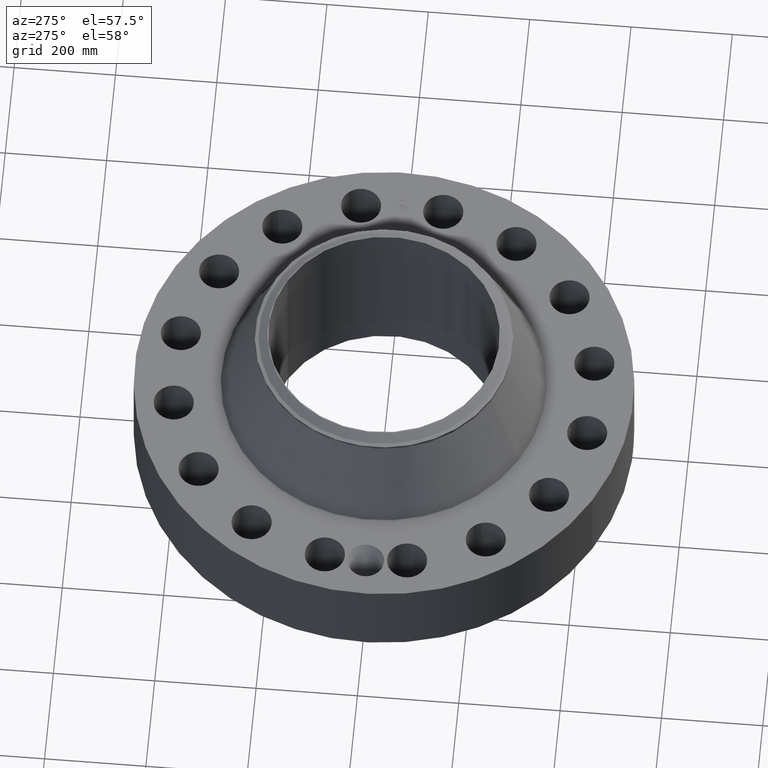
[diagram: clean part render]
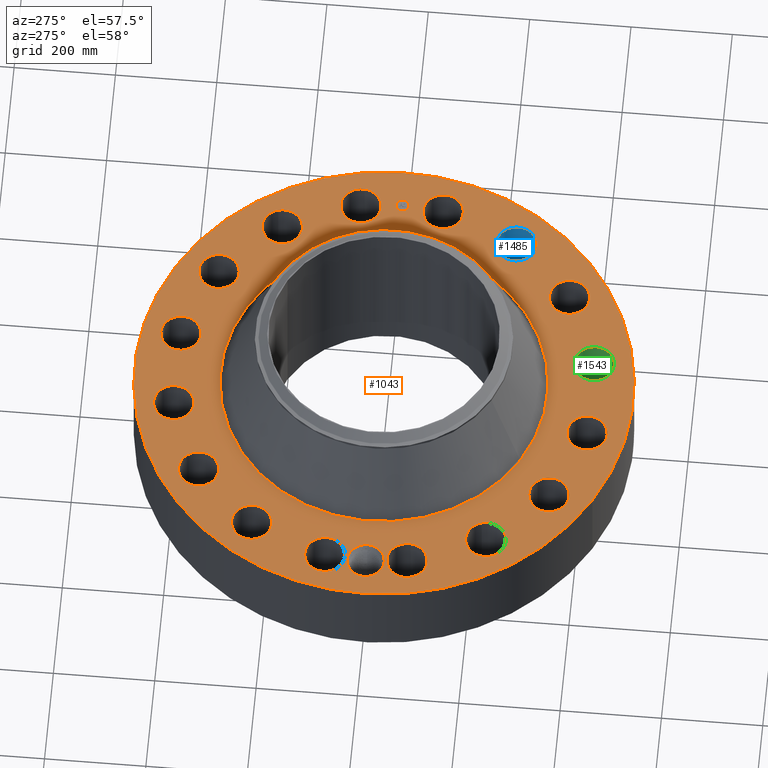
[diagram: same view with three faces highlighted in distinct colors, each labeled with its STEP entity id]
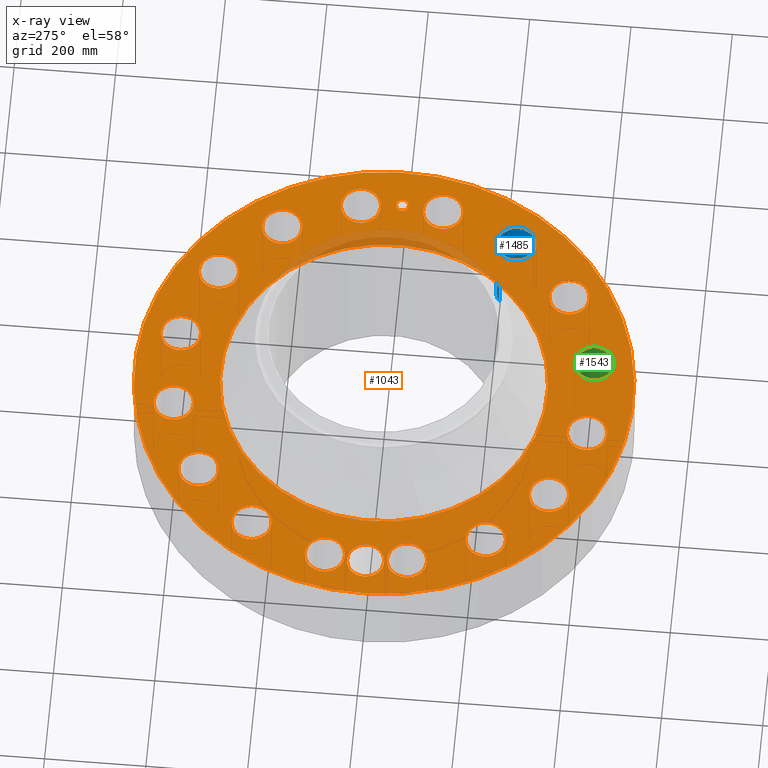
[diagram: x-ray of the same camera — body ghosted, the three highlighted faces saturated]
A machine part, auxiliary view with three faces highlighted in distinct colors.
The next image is the same camera in x-ray (body ghosted, the three faces saturated) — at least one of them is partly hidden behind the body in this view.
Their STEP definitions:

[orange] entity #1043 — the highlighted planar face has unit normal (0, 0, -1).
#58=AXIS2_PLACEMENT_3D('Circle Axis2P3D',#56,#57,$) ;
#549=AXIS2_PLACEMENT_3D('Circle Axis2P3D',#547,#548,$) ;
#649=AXIS2_PLACEMENT_3D('Plane Axis2P3D',#646,#647,#648) ;
#703=AXIS2_PLACEMENT_3D('Circle Axis2P3D',#701,#702,$) ;
#710=AXIS2_PLACEMENT_3D('Circle Axis2P3D',#708,#709,$) ;
#721=AXIS2_PLACEMENT_3D('Circle Axis2P3D',#719,#720,$) ;
#730=AXIS2_PLACEMENT_3D('Circle Axis2P3D',#728,#729,$) ;
#739=AXIS2_PLACEMENT_3D('Circle Axis2P3D',#737,#738,$) ;
#748=AXIS2_PLACEMENT_3D('Circle Axis2P3D',#746,#747,$) ;
#757=AXIS2_PLACEMENT_3D('Circle Axis2P3D',#755,#756,$) ;
#766=AXIS2_PLACEMENT_3D('Circle Axis2P3D',#764,#765,$) ;
#775=AXIS2_PLACEMENT_3D('Circle Axis2P3D',#773,#774,$) ;
#784=AXIS2_PLACEMENT_3D('Circle Axis2P3D',#782,#783,$) ;
#793=AXIS2_PLACEMENT_3D('Circle Axis2P3D',#791,#792,$) ;
#802=AXIS2_PLACEMENT_3D('Circle Axis2P3D',#800,#801,$) ;
#811=AXIS2_PLACEMENT_3D('Circle Axis2P3D',#809,#810,$) ;
#820=AXIS2_PLACEMENT_3D('Circle Axis2P3D',#818,#819,$) ;
#829=AXIS2_PLACEMENT_3D('Circle Axis2P3D',#827,#828,$) ;
#838=AXIS2_PLACEMENT_3D('Circle Axis2P3D',#836,#837,$) ;
#847=AXIS2_PLACEMENT_3D('Circle Axis2P3D',#845,#846,$) ;
#856=AXIS2_PLACEMENT_3D('Circle Axis2P3D',#854,#855,$) ;
#865=AXIS2_PLACEMENT_3D('Circle Axis2P3D',#863,#864,$) ;
#874=AXIS2_PLACEMENT_3D('Circle Axis2P3D',#872,#873,$) ;
#883=AXIS2_PLACEMENT_3D('Circle Axis2P3D',#881,#882,$) ;
#892=AXIS2_PLACEMENT_3D('Circle Axis2P3D',#890,#891,$) ;
#901=AXIS2_PLACEMENT_3D('Circle Axis2P3D',#899,#900,$) ;
#910=AXIS2_PLACEMENT_3D('Circle Axis2P3D',#908,#909,$) ;
#919=AXIS2_PLACEMENT_3D('Circle Axis2P3D',#917,#918,$) ;
#928=AXIS2_PLACEMENT_3D('Circle Axis2P3D',#926,#927,$) ;
#937=AXIS2_PLACEMENT_3D('Circle Axis2P3D',#935,#936,$) ;
#946=AXIS2_PLACEMENT_3D('Circle Axis2P3D',#944,#945,$) ;
#955=AXIS2_PLACEMENT_3D('Circle Axis2P3D',#953,#954,$) ;
#964=AXIS2_PLACEMENT_3D('Circle Axis2P3D',#962,#963,$) ;
#973=AXIS2_PLACEMENT_3D('Circle Axis2P3D',#971,#972,$) ;
#982=AXIS2_PLACEMENT_3D('Circle Axis2P3D',#980,#981,$) ;
#991=AXIS2_PLACEMENT_3D('Circle Axis2P3D',#989,#990,$) ;
#1000=AXIS2_PLACEMENT_3D('Circle Axis2P3D',#998,#999,$) ;
#1009=AXIS2_PLACEMENT_3D('Circle Axis2P3D',#1007,#1008,$) ;
#1018=AXIS2_PLACEMENT_3D('Circle Axis2P3D',#1016,#1017,$) ;
#1027=AXIS2_PLACEMENT_3D('Circle Axis2P3D',#1025,#1026,$) ;
#1036=AXIS2_PLACEMENT_3D('Circle Axis2P3D',#1034,#1035,$) ;
#53=CARTESIAN_POINT('Vertex',(-9.28886981049,-17.0031621367,7.25000000003)) ;
#56=CARTESIAN_POINT('Axis2P3D Location',(0.,0.,7.25000000003)) ;
#60=CARTESIAN_POINT('Vertex',(9.28886981049,17.0031621367,7.25000000003)) ;
#547=CARTESIAN_POINT('Axis2P3D Location',(0.,0.,7.25000000003)) ;
#646=CARTESIAN_POINT('Axis2P3D Location',(0.,19.3750000001,7.25000000003)) ;
#656=CARTESIAN_POINT('Control Point',(-14.8750000001,0.,7.25000000003)) ;
#657=CARTESIAN_POINT('Control Point',(-14.8779726212,0.111125723991,7.25000000003)) ;
#658=CARTESIAN_POINT('Control Point',(-14.8912398187,0.221844378926,7.25000000003)) ;
#659=CARTESIAN_POINT('Control Point',(-14.9147509767,0.330866696649,7.25000000003)) ;
#660=CARTESIAN_POINT('Control Point',(-14.9864612231,0.558170960446,7.25000000003)) ;
#661=CARTESIAN_POINT('Control Point',(-15.1015006576,0.766496387145,7.25000000003)) ;
#662=CARTESIAN_POINT('Control Point',(-15.1744292327,0.870481389781,7.25000000003)) ;
#663=CARTESIAN_POINT('Control Point',(-15.3410983564,1.06097527259,7.25000000003)) ;
#664=CARTESIAN_POINT('Control Point',(-15.5437589067,1.21146597411,7.25000000003)) ;
#665=CARTESIAN_POINT('Control Point',(-15.6526616259,1.27542554342,7.25000000003)) ;
#666=CARTESIAN_POINT('Control Point',(-15.8248038443,1.35294887583,7.25000000003)) ;
#667=CARTESIAN_POINT('Control Point',(-16.0060079309,1.40156660786,7.25000000003)) ;
#668=CARTESIAN_POINT('Control Point',(-16.0671679704,1.41448543478,7.25000000003)) ;
#669=CARTESIAN_POINT('Control Point',(-16.1795022162,1.43194044004,7.25000000003)) ;
#670=CARTESIAN_POINT('Control Point',(-16.2927879725,1.43828099376,7.25000000003)) ;
#671=CARTESIAN_POINT('Control Point',(-16.3439170638,1.43886929752,7.25000000003)) ;
#672=CARTESIAN_POINT('Control Point',(-16.3949672153,1.43718861859,7.25000000003)) ;
#673=CARTESIAN_POINT('Control Point',(-16.4458040446,1.43325217157,7.25000000003)) ;
#674=CARTESIAN_POINT('Vertex',(-14.8750000001,0.,7.25000000003)) ;
#676=CARTESIAN_POINT('Vertex',(-16.4458040446,1.43325217157,7.25000000003)) ;
#680=CARTESIAN_POINT('Control Point',(-14.8750000001,0.,7.25000000003)) ;
#681=CARTESIAN_POINT('Control Point',(-14.8779729815,-0.111139197835,7.25000000003)) ;
#682=CARTESIAN_POINT('Control Point',(-14.891243039,-0.221871230267,7.25000000003)) ;
#683=CARTESIAN_POINT('Control Point',(-14.9147542841,-0.330894087727,7.25000000003)) ;
#684=CARTESIAN_POINT('Control Point',(-14.9864707189,-0.558222231262,7.25000000003)) ;
#685=CARTESIAN_POINT('Control Point',(-15.101492003,-0.766503046968,7.25000000003)) ;
#686=CARTESIAN_POINT('Control Point',(-15.1744135612,-0.870464829239,7.25000000003)) ;
#687=CARTESIAN_POINT('Control Point',(-15.3410825683,-1.06095245212,7.25000000003)) ;
#688=CARTESIAN_POINT('Control Point',(-15.5436862146,-1.21141651233,7.25000000003)) ;
#689=CARTESIAN_POINT('Control Point',(-15.6525816697,-1.27538471932,7.25000000003)) ;
#690=CARTESIAN_POINT('Control Point',(-15.8676746072,-1.37228477525,7.25000000003)) ;
#691=CARTESIAN_POINT('Control Point',(-16.0969689885,-1.42404552574,7.25000000003)) ;
#692=CARTESIAN_POINT('Control Point',(-16.2057866215,-1.43797374633,7.25000000003)) ;
#693=CARTESIAN_POINT('Control Point',(-16.319571975,-1.44166566766,7.25000000003)) ;
#694=CARTESIAN_POINT('Control Point',(-16.4325378009,-1.43422473003,7.25000000003)) ;
#695=CARTESIAN_POINT('Control Point',(-16.4369169982,-1.433919456,7.25000000003)) ;
#696=CARTESIAN_POINT('Control Point',(-16.4412947895,-1.43359745469,7.25000000003)) ;
#697=CARTESIAN_POINT('Control Point',(-16.445671088,-1.43325873357,7.25000000003)) ;
#698=CARTESIAN_POINT('Vertex',(-16.445671088,-1.43325873357,7.25000000003)) ;
#701=CARTESIAN_POINT('Axis2P3D Location',(-16.3750000001,0.,7.25000000003)) ;
#705=CARTESIAN_POINT('Vertex',(-17.6343309764,0.6879756479,7.25000000003)) ;
#708=CARTESIAN_POINT('Axis2P3D Location',(-16.3750000001,0.,7.25000000003)) ;
#719=CARTESIAN_POINT('Axis2P3D Location',(16.0603589667,-3.19460402303,7.25000000003)) ;
#723=CARTESIAN_POINT('Vertex',(14.6913301701,-2.4467001828,7.25000000003)) ;
#725=CARTESIAN_POINT('Vertex',(17.4293877632,-3.94250786325,7.25000000003)) ;
#728=CARTESIAN_POINT('Axis2P3D Location',(16.0603589667,-3.19460402303,7.25000000003)) ;
#737=CARTESIAN_POINT('Axis2P3D Location',(0.,0.,7.25000000003)) ;
#741=CARTESIAN_POINT('Vertex',(-6.09086532425,-11.1492541906,7.25000000003)) ;
#743=CARTESIAN_POINT('Vertex',(6.09086532425,11.1492541906,7.25000000003)) ;
#746=CARTESIAN_POINT('Axis2P3D Location',(0.,0.,7.25000000003)) ;
#755=CARTESIAN_POINT('Axis2P3D Location',(13.6153149015,-9.09746256573,7.25000000003)) ;
#759=CARTESIAN_POINT('Vertex',(14.5939221774,-10.3123402549,7.25000000003)) ;
#761=CARTESIAN_POINT('Vertex',(12.6367076256,-7.88258487659,7.25000000003)) ;
#764=CARTESIAN_POINT('Axis2P3D Location',(13.6153149015,-9.09746256573,7.25000000003)) ;
#773=CARTESIAN_POINT('Axis2P3D Location',(9.09746256573,-13.6153149015,7.25000000003)) ;
#777=CARTESIAN_POINT('Vertex',(9.53666423432,-15.1122123243,7.25000000003)) ;
#779=CARTESIAN_POINT('Vertex',(8.65826089715,-12.1184174787,7.25000000003)) ;
#782=CARTESIAN_POINT('Axis2P3D Location',(9.09746256573,-13.6153149015,7.25000000003)) ;
#791=CARTESIAN_POINT('Axis2P3D Location',(3.19460402303,-16.0603589667,7.25000000003)) ;
#795=CARTESIAN_POINT('Vertex',(3.02753561163,-17.6113870599,7.25000000003)) ;
#797=CARTESIAN_POINT('Vertex',(3.36167243443,-14.5093308735,7.25000000003)) ;
#800=CARTESIAN_POINT('Axis2P3D Location',(3.19460402303,-16.0603589667,7.25000000003)) ;
#809=CARTESIAN_POINT('Axis2P3D Location',(-3.19460402303,-16.0603589667,7.25000000003)) ;
#813=CARTESIAN_POINT('Vertex',(-3.94250786325,-17.4293877632,7.25000000003)) ;
#815=CARTESIAN_POINT('Vertex',(-2.4467001828,-14.6913301701,7.25000000003)) ;
#818=CARTESIAN_POINT('Axis2P3D Location',(-3.19460402303,-16.0603589667,7.25000000003)) ;
#827=CARTESIAN_POINT('Axis2P3D Location',(-9.09746256573,-13.6153149015,7.25000000003)) ;
#831=CARTESIAN_POINT('Vertex',(-10.3123402549,-14.5939221774,7.25000000003)) ;
#833=CARTESIAN_POINT('Vertex',(-7.88258487659,-12.6367076256,7.25000000003)) ;
#836=CARTESIAN_POINT('Axis2P3D Location',(-9.09746256573,-13.6153149015,7.25000000003)) ;
#845=CARTESIAN_POINT('Axis2P3D Location',(-13.6153149015,-9.09746256573,7.25000000003)) ;
#849=CARTESIAN_POINT('Vertex',(-15.1122123243,-9.53666423432,7.25000000003)) ;
#851=CARTESIAN_POINT('Vertex',(-12.1184174787,-8.65826089715,7.25000000003)) ;
#854=CARTESIAN_POINT('Axis2P3D Location',(-13.6153149015,-9.09746256573,7.25000000003)) ;
#863=CARTESIAN_POINT('Axis2P3D Location',(-16.0603589667,-3.19460402303,7.25000000003)) ;
#867=CARTESIAN_POINT('Vertex',(-17.6113870599,-3.02753561163,7.25000000003)) ;
#869=CARTESIAN_POINT('Vertex',(-14.5093308735,-3.36167243443,7.25000000003)) ;
#872=CARTESIAN_POINT('Axis2P3D Location',(-16.0603589667,-3.19460402303,7.25000000003)) ;
#881=CARTESIAN_POINT('Axis2P3D Location',(-16.0603589667,3.19460402303,7.25000000003)) ;
#885=CARTESIAN_POINT('Vertex',(-17.4293877632,3.94250786325,7.25000000003)) ;
#887=CARTESIAN_POINT('Vertex',(-14.6913301701,2.4467001828,7.25000000003)) ;
#890=CARTESIAN_POINT('Axis2P3D Location',(-16.0603589667,3.19460402303,7.25000000003)) ;
#899=CARTESIAN_POINT('Axis2P3D Location',(-13.6153149015,9.09746256573,7.25000000003)) ;
#903=CARTESIAN_POINT('Vertex',(-14.5939221774,10.3123402549,7.25000000003)) ;
#905=CARTESIAN_POINT('Vertex',(-12.6367076256,7.88258487659,7.25000000003)) ;
#908=CARTESIAN_POINT('Axis2P3D Location',(-13.6153149015,9.09746256573,7.25000000003)) ;
#917=CARTESIAN_POINT('Axis2P3D Location',(-9.09746256573,13.6153149015,7.25000000003)) ;
#921=CARTESIAN_POINT('Vertex',(-9.53666423432,15.1122123243,7.25000000003)) ;
#923=CARTESIAN_POINT('Vertex',(-8.65826089715,12.1184174787,7.25000000003)) ;
#926=CARTESIAN_POINT('Axis2P3D Location',(-9.09746256573,13.6153149015,7.25000000003)) ;
#935=CARTESIAN_POINT('Axis2P3D Location',(-3.19460402303,16.0603589667,7.25000000003)) ;
#939=CARTESIAN_POINT('Vertex',(-3.02753561163,17.6113870599,7.25000000003)) ;
#941=CARTESIAN_POINT('Vertex',(-3.36167243443,14.5093308735,7.25000000003)) ;
#944=CARTESIAN_POINT('Axis2P3D Location',(-3.19460402303,16.0603589667,7.25000000003)) ;
#953=CARTESIAN_POINT('Axis2P3D Location',(3.19460402303,16.0603589667,7.25000000003)) ;
#957=CARTESIAN_POINT('Vertex',(3.94250786325,17.4293877632,7.25000000003)) ;
#959=CARTESIAN_POINT('Vertex',(2.4467001828,14.6913301701,7.25000000003)) ;
#962=CARTESIAN_POINT('Axis2P3D Location',(3.19460402303,16.0603589667,7.25000000003)) ;
#971=CARTESIAN_POINT('Axis2P3D Location',(9.09746256573,13.6153149015,7.25000000003)) ;
#975=CARTESIAN_POINT('Vertex',(10.3123402549,14.5939221774,7.25000000003)) ;
#977=CARTESIAN_POINT('Vertex',(7.88258487659,12.6367076256,7.25000000003)) ;
#980=CARTESIAN_POINT('Axis2P3D Location',(9.09746256573,13.6153149015,7.25000000003)) ;
#989=CARTESIAN_POINT('Axis2P3D Location',(13.6153149015,9.09746256573,7.25000000003)) ;
#993=CARTESIAN_POINT('Vertex',(15.1122123243,9.53666423432,7.25000000003)) ;
#995=CARTESIAN_POINT('Vertex',(12.1184174787,8.65826089715,7.25000000003)) ;
#998=CARTESIAN_POINT('Axis2P3D Location',(13.6153149015,9.09746256573,7.25000000003)) ;
#1007=CARTESIAN_POINT('Axis2P3D Location',(16.0603589667,3.19460402303,7.25000000003)) ;
#1011=CARTESIAN_POINT('Vertex',(17.6113870599,3.02753561163,7.25000000003)) ;
#1013=CARTESIAN_POINT('Vertex',(14.5093308735,3.36167243443,7.25000000003)) ;
#1016=CARTESIAN_POINT('Axis2P3D Location',(16.0603589667,3.19460402303,7.25000000003)) ;
#1025=CARTESIAN_POINT('Axis2P3D Location',(16.3750000001,0.,7.25000000003)) ;
#1029=CARTESIAN_POINT('Vertex',(16.3750000001,0.499999995002,7.25000000003)) ;
#1031=CARTESIAN_POINT('Vertex',(16.3750000001,-0.499999995002,7.25000000003)) ;
#1034=CARTESIAN_POINT('Axis2P3D Location',(16.3750000001,0.,7.25000000003)) ;
#57=DIRECTION('Axis2P3D Direction',(0.,0.,-0.0393700787402)) ;
#548=DIRECTION('Axis2P3D Direction',(0.,0.,-0.0393700787402)) ;
#647=DIRECTION('Axis2P3D Direction',(0.,0.,-0.0393700787402)) ;
#648=DIRECTION('Axis2P3D XDirection',(0.0393700787402,0.,0.)) ;
#702=DIRECTION('Axis2P3D Direction',(0.,0.,-0.0393700787402)) ;
#709=DIRECTION('Axis2P3D Direction',(0.,0.,-0.0393700787402)) ;
#720=DIRECTION('Axis2P3D Direction',(0.,0.,-0.0393700787402)) ;
#729=DIRECTION('Axis2P3D Direction',(0.,0.,-0.0393700787402)) ;
#738=DIRECTION('Axis2P3D Direction',(0.,0.,-0.0393700787402)) ;
#747=DIRECTION('Axis2P3D Direction',(0.,0.,-0.0393700787402)) ;
#756=DIRECTION('Axis2P3D Direction',(0.,0.,-0.0393700787402)) ;
#765=DIRECTION('Axis2P3D Direction',(0.,0.,-0.0393700787402)) ;
#774=DIRECTION('Axis2P3D Direction',(0.,0.,-0.0393700787402)) ;
#783=DIRECTION('Axis2P3D Direction',(0.,0.,-0.0393700787402)) ;
#792=DIRECTION('Axis2P3D Direction',(0.,0.,-0.0393700787402)) ;
#801=DIRECTION('Axis2P3D Direction',(0.,0.,-0.0393700787402)) ;
#810=DIRECTION('Axis2P3D Direction',(0.,0.,-0.0393700787402)) ;
#819=DIRECTION('Axis2P3D Direction',(0.,0.,-0.0393700787402)) ;
#828=DIRECTION('Axis2P3D Direction',(0.,0.,-0.0393700787402)) ;
#837=DIRECTION('Axis2P3D Direction',(0.,0.,-0.0393700787402)) ;
#846=DIRECTION('Axis2P3D Direction',(0.,0.,-0.0393700787402)) ;
#855=DIRECTION('Axis2P3D Direction',(0.,0.,-0.0393700787402)) ;
#864=DIRECTION('Axis2P3D Direction',(0.,0.,-0.0393700787402)) ;
#873=DIRECTION('Axis2P3D Direction',(0.,0.,-0.0393700787402)) ;
#882=DIRECTION('Axis2P3D Direction',(0.,0.,-0.0393700787402)) ;
#891=DIRECTION('Axis2P3D Direction',(0.,0.,-0.0393700787402)) ;
#900=DIRECTION('Axis2P3D Direction',(0.,0.,-0.0393700787402)) ;
#909=DIRECTION('Axis2P3D Direction',(0.,0.,-0.0393700787402)) ;
#918=DIRECTION('Axis2P3D Direction',(0.,0.,-0.0393700787402)) ;
#927=DIRECTION('Axis2P3D Direction',(0.,0.,-0.0393700787402)) ;
#936=DIRECTION('Axis2P3D Direction',(0.,0.,-0.0393700787402)) ;
#945=DIRECTION('Axis2P3D Direction',(0.,0.,-0.0393700787402)) ;
#954=DIRECTION('Axis2P3D Direction',(0.,0.,-0.0393700787402)) ;
#963=DIRECTION('Axis2P3D Direction',(0.,0.,-0.0393700787402)) ;
#972=DIRECTION('Axis2P3D Direction',(0.,0.,-0.0393700787402)) ;
#981=DIRECTION('Axis2P3D Direction',(0.,0.,-0.0393700787402)) ;
#990=DIRECTION('Axis2P3D Direction',(0.,0.,-0.0393700787402)) ;
#999=DIRECTION('Axis2P3D Direction',(0.,0.,-0.0393700787402)) ;
#1008=DIRECTION('Axis2P3D Direction',(0.,0.,-0.0393700787402)) ;
#1017=DIRECTION('Axis2P3D Direction',(0.,0.,-0.0393700787402)) ;
#1026=DIRECTION('Axis2P3D Direction',(0.,0.,-0.0393700787402)) ;
#1035=DIRECTION('Axis2P3D Direction',(0.,0.,-0.0393700787402)) ;
#652=ORIENTED_EDGE('',*,*,#551,.F.) ;
#653=ORIENTED_EDGE('',*,*,#62,.F.) ;
#714=ORIENTED_EDGE('',*,*,#678,.F.) ;
#715=ORIENTED_EDGE('',*,*,#700,.T.) ;
#716=ORIENTED_EDGE('',*,*,#707,.T.) ;
#717=ORIENTED_EDGE('',*,*,#712,.T.) ;
#734=ORIENTED_EDGE('',*,*,#727,.T.) ;
#735=ORIENTED_EDGE('',*,*,#732,.T.) ;
#752=ORIENTED_EDGE('',*,*,#745,.T.) ;
#753=ORIENTED_EDGE('',*,*,#750,.T.) ;
#770=ORIENTED_EDGE('',*,*,#763,.T.) ;
#771=ORIENTED_EDGE('',*,*,#768,.T.) ;
#788=ORIENTED_EDGE('',*,*,#781,.T.) ;
#789=ORIENTED_EDGE('',*,*,#786,.T.) ;
#806=ORIENTED_EDGE('',*,*,#799,.T.) ;
#807=ORIENTED_EDGE('',*,*,#804,.T.) ;
#824=ORIENTED_EDGE('',*,*,#817,.T.) ;
#825=ORIENTED_EDGE('',*,*,#822,.T.) ;
#842=ORIENTED_EDGE('',*,*,#835,.T.) ;
#843=ORIENTED_EDGE('',*,*,#840,.T.) ;
#860=ORIENTED_EDGE('',*,*,#853,.T.) ;
#861=ORIENTED_EDGE('',*,*,#858,.T.) ;
#878=ORIENTED_EDGE('',*,*,#871,.T.) ;
#879=ORIENTED_EDGE('',*,*,#876,.T.) ;
#896=ORIENTED_EDGE('',*,*,#889,.T.) ;
#897=ORIENTED_EDGE('',*,*,#894,.T.) ;
#914=ORIENTED_EDGE('',*,*,#907,.T.) ;
#915=ORIENTED_EDGE('',*,*,#912,.T.) ;
#932=ORIENTED_EDGE('',*,*,#925,.T.) ;
#933=ORIENTED_EDGE('',*,*,#930,.T.) ;
#950=ORIENTED_EDGE('',*,*,#943,.T.) ;
#951=ORIENTED_EDGE('',*,*,#948,.T.) ;
#968=ORIENTED_EDGE('',*,*,#961,.T.) ;
#969=ORIENTED_EDGE('',*,*,#966,.T.) ;
#986=ORIENTED_EDGE('',*,*,#979,.T.) ;
#987=ORIENTED_EDGE('',*,*,#984,.T.) ;
#1004=ORIENTED_EDGE('',*,*,#997,.T.) ;
#1005=ORIENTED_EDGE('',*,*,#1002,.T.) ;
#1022=ORIENTED_EDGE('',*,*,#1015,.T.) ;
#1023=ORIENTED_EDGE('',*,*,#1020,.T.) ;
#1040=ORIENTED_EDGE('',*,*,#1033,.T.) ;
#1041=ORIENTED_EDGE('',*,*,#1038,.T.) ;
#718=FACE_BOUND('',#713,.T.) ;
#736=FACE_BOUND('',#733,.T.) ;
#754=FACE_BOUND('',#751,.T.) ;
#772=FACE_BOUND('',#769,.T.) ;
#790=FACE_BOUND('',#787,.T.) ;
#808=FACE_BOUND('',#805,.T.) ;
#826=FACE_BOUND('',#823,.T.) ;
#844=FACE_BOUND('',#841,.T.) ;
#862=FACE_BOUND('',#859,.T.) ;
#880=FACE_BOUND('',#877,.T.) ;
#898=FACE_BOUND('',#895,.T.) ;
#916=FACE_BOUND('',#913,.T.) ;
#934=FACE_BOUND('',#931,.T.) ;
#952=FACE_BOUND('',#949,.T.) ;
#970=FACE_BOUND('',#967,.T.) ;
#988=FACE_BOUND('',#985,.T.) ;
#1006=FACE_BOUND('',#1003,.T.) ;
#1024=FACE_BOUND('',#1021,.T.) ;
#1042=FACE_BOUND('',#1039,.T.) ;
#1043=ADVANCED_FACE('PartBody',(#654,#718,#736,#754,#772,#790,#808,#826,#844,#862,#880,#898,#916,#934,#952,#970,#988,#1006,#1024,#1042),#650,.F.) ;
#655=B_SPLINE_CURVE_WITH_KNOTS('',5,(#656,#657,#658,#659,#660,#661,#662,#663,#664,#665,#666,#667,#668,#669,#670,#671,#672,#673),.UNSPECIFIED.,.F.,.U.,(6,3,3,3,3,6),(0.,19.5605297382,41.9229814709,64.2804915093,75.45383994,84.6261161027),.UNSPECIFIED.) ;
#679=B_SPLINE_CURVE_WITH_KNOTS('',5,(#680,#681,#682,#683,#684,#685,#686,#687,#688,#689,#690,#691,#692,#693,#694,#695,#696,#697),.UNSPECIFIED.,.F.,.U.,(6,3,3,3,3,6),(0.,19.5629014257,41.9377840224,64.3216328483,83.8892695149,84.67866134),.UNSPECIFIED.) ;
#59=CIRCLE('generated circle',#58,19.3750000001) ;
#550=CIRCLE('generated circle',#549,19.3750000001) ;
#704=CIRCLE('generated circle',#703,1.43500000001) ;
#711=CIRCLE('generated circle',#710,1.43500000001) ;
#722=CIRCLE('generated circle',#721,1.56000000001) ;
#731=CIRCLE('generated circle',#730,1.56000000001) ;
#740=CIRCLE('generated circle',#739,12.7045074444) ;
#749=CIRCLE('generated circle',#748,12.7045074444) ;
#758=CIRCLE('generated circle',#757,1.56000000001) ;
#767=CIRCLE('generated circle',#766,1.56000000001) ;
#776=CIRCLE('generated circle',#775,1.56000000001) ;
#785=CIRCLE('generated circle',#784,1.56000000001) ;
#794=CIRCLE('generated circle',#793,1.56000000001) ;
#803=CIRCLE('generated circle',#802,1.56000000001) ;
#812=CIRCLE('generated circle',#811,1.56000000001) ;
#821=CIRCLE('generated circle',#820,1.56000000001) ;
#830=CIRCLE('generated circle',#829,1.56000000001) ;
#839=CIRCLE('generated circle',#838,1.56000000001) ;
#848=CIRCLE('generated circle',#847,1.56000000001) ;
#857=CIRCLE('generated circle',#856,1.56000000001) ;
#866=CIRCLE('generated circle',#865,1.56000000001) ;
#875=CIRCLE('generated circle',#874,1.56000000001) ;
#884=CIRCLE('generated circle',#883,1.56000000001) ;
#893=CIRCLE('generated circle',#892,1.56000000001) ;
#902=CIRCLE('generated circle',#901,1.56000000001) ;
#911=CIRCLE('generated circle',#910,1.56000000001) ;
#920=CIRCLE('generated circle',#919,1.56000000001) ;
#929=CIRCLE('generated circle',#928,1.56000000001) ;
#938=CIRCLE('generated circle',#937,1.56000000001) ;
#947=CIRCLE('generated circle',#946,1.56000000001) ;
#956=CIRCLE('generated circle',#955,1.56000000001) ;
#965=CIRCLE('generated circle',#964,1.56000000001) ;
#974=CIRCLE('generated circle',#973,1.56000000001) ;
#983=CIRCLE('generated circle',#982,1.56000000001) ;
#992=CIRCLE('generated circle',#991,1.56000000001) ;
#1001=CIRCLE('generated circle',#1000,1.56000000001) ;
#1010=CIRCLE('generated circle',#1009,1.56000000001) ;
#1019=CIRCLE('generated circle',#1018,1.56000000001) ;
#1028=CIRCLE('generated circle',#1027,0.499999995002) ;
#1037=CIRCLE('generated circle',#1036,0.499999995002) ;
#62=EDGE_CURVE('',#54,#61,#59,.T.) ;
#551=EDGE_CURVE('',#61,#54,#550,.T.) ;
#678=EDGE_CURVE('',#675,#677,#655,.T.) ;
#700=EDGE_CURVE('',#675,#699,#679,.T.) ;
#707=EDGE_CURVE('',#699,#706,#704,.T.) ;
#712=EDGE_CURVE('',#706,#677,#711,.T.) ;
#727=EDGE_CURVE('',#724,#726,#722,.T.) ;
#732=EDGE_CURVE('',#726,#724,#731,.T.) ;
#745=EDGE_CURVE('',#742,#744,#740,.T.) ;
#750=EDGE_CURVE('',#744,#742,#749,.T.) ;
#763=EDGE_CURVE('',#760,#762,#758,.T.) ;
#768=EDGE_CURVE('',#762,#760,#767,.T.) ;
#781=EDGE_CURVE('',#778,#780,#776,.T.) ;
#786=EDGE_CURVE('',#780,#778,#785,.T.) ;
#799=EDGE_CURVE('',#796,#798,#794,.T.) ;
#804=EDGE_CURVE('',#798,#796,#803,.T.) ;
#817=EDGE_CURVE('',#814,#816,#812,.T.) ;
#822=EDGE_CURVE('',#816,#814,#821,.T.) ;
#835=EDGE_CURVE('',#832,#834,#830,.T.) ;
#840=EDGE_CURVE('',#834,#832,#839,.T.) ;
#853=EDGE_CURVE('',#850,#852,#848,.T.) ;
#858=EDGE_CURVE('',#852,#850,#857,.T.) ;
#871=EDGE_CURVE('',#868,#870,#866,.T.) ;
#876=EDGE_CURVE('',#870,#868,#875,.T.) ;
#889=EDGE_CURVE('',#886,#888,#884,.T.) ;
#894=EDGE_CURVE('',#888,#886,#893,.T.) ;
#907=EDGE_CURVE('',#904,#906,#902,.T.) ;
#912=EDGE_CURVE('',#906,#904,#911,.T.) ;
#925=EDGE_CURVE('',#922,#924,#920,.T.) ;
#930=EDGE_CURVE('',#924,#922,#929,.T.) ;
#943=EDGE_CURVE('',#940,#942,#938,.T.) ;
#948=EDGE_CURVE('',#942,#940,#947,.T.) ;
#961=EDGE_CURVE('',#958,#960,#956,.T.) ;
#966=EDGE_CURVE('',#960,#958,#965,.T.) ;
#979=EDGE_CURVE('',#976,#978,#974,.T.) ;
#984=EDGE_CURVE('',#978,#976,#983,.T.) ;
#997=EDGE_CURVE('',#994,#996,#992,.T.) ;
#1002=EDGE_CURVE('',#996,#994,#1001,.T.) ;
#1015=EDGE_CURVE('',#1012,#1014,#1010,.T.) ;
#1020=EDGE_CURVE('',#1014,#1012,#1019,.T.) ;
#1033=EDGE_CURVE('',#1030,#1032,#1028,.T.) ;
#1038=EDGE_CURVE('',#1032,#1030,#1037,.T.) ;
#651=EDGE_LOOP('',(#652,#653)) ;
#713=EDGE_LOOP('',(#714,#715,#716,#717)) ;
#733=EDGE_LOOP('',(#734,#735)) ;
#751=EDGE_LOOP('',(#752,#753)) ;
#769=EDGE_LOOP('',(#770,#771)) ;
#787=EDGE_LOOP('',(#788,#789)) ;
#805=EDGE_LOOP('',(#806,#807)) ;
#823=EDGE_LOOP('',(#824,#825)) ;
#841=EDGE_LOOP('',(#842,#843)) ;
#859=EDGE_LOOP('',(#860,#861)) ;
#877=EDGE_LOOP('',(#878,#879)) ;
#895=EDGE_LOOP('',(#896,#897)) ;
#913=EDGE_LOOP('',(#914,#915)) ;
#931=EDGE_LOOP('',(#932,#933)) ;
#949=EDGE_LOOP('',(#950,#951)) ;
#967=EDGE_LOOP('',(#968,#969)) ;
#985=EDGE_LOOP('',(#986,#987)) ;
#1003=EDGE_LOOP('',(#1004,#1005)) ;
#1021=EDGE_LOOP('',(#1022,#1023)) ;
#1039=EDGE_LOOP('',(#1040,#1041)) ;
#654=FACE_OUTER_BOUND('',#651,.T.) ;
#650=PLANE('',#649) ;
#54=VERTEX_POINT('',#53) ;
#61=VERTEX_POINT('',#60) ;
#675=VERTEX_POINT('',#674) ;
#677=VERTEX_POINT('',#676) ;
#699=VERTEX_POINT('',#698) ;
#706=VERTEX_POINT('',#705) ;
#724=VERTEX_POINT('',#723) ;
#726=VERTEX_POINT('',#725) ;
#742=VERTEX_POINT('',#741) ;
#744=VERTEX_POINT('',#743) ;
#760=VERTEX_POINT('',#759) ;
#762=VERTEX_POINT('',#761) ;
#778=VERTEX_POINT('',#777) ;
#780=VERTEX_POINT('',#779) ;
#796=VERTEX_POINT('',#795) ;
#798=VERTEX_POINT('',#797) ;
#814=VERTEX_POINT('',#813) ;
#816=VERTEX_POINT('',#815) ;
#832=VERTEX_POINT('',#831) ;
#834=VERTEX_POINT('',#833) ;
#850=VERTEX_POINT('',#849) ;
#852=VERTEX_POINT('',#851) ;
#868=VERTEX_POINT('',#867) ;
#870=VERTEX_POINT('',#869) ;
#886=VERTEX_POINT('',#885) ;
#888=VERTEX_POINT('',#887) ;
#904=VERTEX_POINT('',#903) ;
#906=VERTEX_POINT('',#905) ;
#922=VERTEX_POINT('',#921) ;
#924=VERTEX_POINT('',#923) ;
#940=VERTEX_POINT('',#939) ;
#942=VERTEX_POINT('',#941) ;
#958=VERTEX_POINT('',#957) ;
#960=VERTEX_POINT('',#959) ;
#976=VERTEX_POINT('',#975) ;
#978=VERTEX_POINT('',#977) ;
#994=VERTEX_POINT('',#993) ;
#996=VERTEX_POINT('',#995) ;
#1012=VERTEX_POINT('',#1011) ;
#1014=VERTEX_POINT('',#1013) ;
#1030=VERTEX_POINT('',#1029) ;
#1032=VERTEX_POINT('',#1031) ;

[blue] entity #1485 — the highlighted cylindrical surface (edge-blend (fillet) strip) has radius 39.624 mm, axis along (0, -0, -1).
#278=AXIS2_PLACEMENT_3D('Circle Axis2P3D',#276,#277,$) ;
#766=AXIS2_PLACEMENT_3D('Circle Axis2P3D',#764,#765,$) ;
#1467=AXIS2_PLACEMENT_3D('Cylinder Axis2P3D',#1464,#1465,#1466) ;
#276=CARTESIAN_POINT('Axis2P3D Location',(13.6153149015,-9.09746256573,0.250000000001)) ;
#280=CARTESIAN_POINT('Vertex',(12.6367076256,-7.88258487659,0.250000000001)) ;
#282=CARTESIAN_POINT('Vertex',(14.5939221774,-10.3123402549,0.250000000001)) ;
#759=CARTESIAN_POINT('Vertex',(14.5939221774,-10.3123402549,7.25000000003)) ;
#761=CARTESIAN_POINT('Vertex',(12.6367076256,-7.88258487659,7.25000000003)) ;
#764=CARTESIAN_POINT('Axis2P3D Location',(13.6153149015,-9.09746256573,7.25000000003)) ;
#1464=CARTESIAN_POINT('Axis2P3D Location',(13.6153149015,-9.09746256573,7.24606299215)) ;
#1469=CARTESIAN_POINT('Line Origine',(12.6367076256,-7.88258487659,3.75000000002)) ;
#1474=CARTESIAN_POINT('Line Origine',(14.5939221774,-10.3123402549,3.75000000002)) ;
#277=DIRECTION('Axis2P3D Direction',(0.,0.,-0.0393700787402)) ;
#765=DIRECTION('Axis2P3D Direction',(0.,0.,-0.0393700787402)) ;
#1465=DIRECTION('Axis2P3D Direction',(0.,-0.,-0.0393700787402)) ;
#1466=DIRECTION('Axis2P3D XDirection',(0.0246973368639,-0.030660147616,0.)) ;
#1470=DIRECTION('Vector Direction',(0.,0.,-0.0393700787402)) ;
#1475=DIRECTION('Vector Direction',(0.,0.,-0.0393700787402)) ;
#1471=VECTOR('Line Direction',#1470,0.0393700787402) ;
#1476=VECTOR('Line Direction',#1475,0.0393700787402) ;
#1480=ORIENTED_EDGE('',*,*,#1473,.F.) ;
#1481=ORIENTED_EDGE('',*,*,#284,.T.) ;
#1482=ORIENTED_EDGE('',*,*,#1478,.T.) ;
#1483=ORIENTED_EDGE('',*,*,#768,.F.) ;
#1485=ADVANCED_FACE('PartBody',(#1484),#1468,.F.) ;
#279=CIRCLE('generated circle',#278,1.56000000001) ;
#767=CIRCLE('generated circle',#766,1.56000000001) ;
#1468=CYLINDRICAL_SURFACE('generated cylinder',#1467,1.56000000001) ;
#284=EDGE_CURVE('',#281,#283,#279,.T.) ;
#768=EDGE_CURVE('',#762,#760,#767,.T.) ;
#1473=EDGE_CURVE('',#281,#762,#1472,.F.) ;
#1478=EDGE_CURVE('',#283,#760,#1477,.F.) ;
#1479=EDGE_LOOP('',(#1480,#1481,#1482,#1483)) ;
#1484=FACE_OUTER_BOUND('',#1479,.T.) ;
#1472=LINE('Line',#1469,#1471) ;
#1477=LINE('Line',#1474,#1476) ;
#281=VERTEX_POINT('',#280) ;
#283=VERTEX_POINT('',#282) ;
#760=VERTEX_POINT('',#759) ;
#762=VERTEX_POINT('',#761) ;

[green] entity #1543 — the highlighted cylindrical surface (edge-blend (fillet) strip) has radius 39.624 mm, axis along (0, -0, -1).
#314=AXIS2_PLACEMENT_3D('Circle Axis2P3D',#312,#313,$) ;
#802=AXIS2_PLACEMENT_3D('Circle Axis2P3D',#800,#801,$) ;
#1525=AXIS2_PLACEMENT_3D('Cylinder Axis2P3D',#1522,#1523,#1524) ;
#312=CARTESIAN_POINT('Axis2P3D Location',(3.19460402303,-16.0603589667,0.250000000001)) ;
#316=CARTESIAN_POINT('Vertex',(3.36167243443,-14.5093308735,0.250000000001)) ;
#318=CARTESIAN_POINT('Vertex',(3.02753561163,-17.6113870599,0.250000000001)) ;
#795=CARTESIAN_POINT('Vertex',(3.02753561163,-17.6113870599,7.25000000003)) ;
#797=CARTESIAN_POINT('Vertex',(3.36167243443,-14.5093308735,7.25000000003)) ;
#800=CARTESIAN_POINT('Axis2P3D Location',(3.19460402303,-16.0603589667,7.25000000003)) ;
#1522=CARTESIAN_POINT('Axis2P3D Location',(3.19460402303,-16.0603589667,7.24606299215)) ;
#1527=CARTESIAN_POINT('Line Origine',(3.36167243443,-14.5093308735,3.75000000002)) ;
#1532=CARTESIAN_POINT('Line Origine',(3.02753561163,-17.6113870599,3.75000000002)) ;
#313=DIRECTION('Axis2P3D Direction',(0.,0.,-0.0393700787402)) ;
#801=DIRECTION('Axis2P3D Direction',(0.,0.,-0.0393700787402)) ;
#1523=DIRECTION('Axis2P3D Direction',(0.,-0.,-0.0393700787402)) ;
#1524=DIRECTION('Axis2P3D XDirection',(-0.00421634391778,-0.0391436526652,0.)) ;
#1528=DIRECTION('Vector Direction',(0.,0.,-0.0393700787402)) ;
#1533=DIRECTION('Vector Direction',(0.,0.,-0.0393700787402)) ;
#1529=VECTOR('Line Direction',#1528,0.0393700787402) ;
#1534=VECTOR('Line Direction',#1533,0.0393700787402) ;
#1538=ORIENTED_EDGE('',*,*,#1531,.F.) ;
#1539=ORIENTED_EDGE('',*,*,#320,.T.) ;
#1540=ORIENTED_EDGE('',*,*,#1536,.T.) ;
#1541=ORIENTED_EDGE('',*,*,#804,.F.) ;
#1543=ADVANCED_FACE('PartBody',(#1542),#1526,.F.) ;
#315=CIRCLE('generated circle',#314,1.56000000001) ;
#803=CIRCLE('generated circle',#802,1.56000000001) ;
#1526=CYLINDRICAL_SURFACE('generated cylinder',#1525,1.56000000001) ;
#320=EDGE_CURVE('',#317,#319,#315,.T.) ;
#804=EDGE_CURVE('',#798,#796,#803,.T.) ;
#1531=EDGE_CURVE('',#317,#798,#1530,.F.) ;
#1536=EDGE_CURVE('',#319,#796,#1535,.F.) ;
#1537=EDGE_LOOP('',(#1538,#1539,#1540,#1541)) ;
#1542=FACE_OUTER_BOUND('',#1537,.T.) ;
#1530=LINE('Line',#1527,#1529) ;
#1535=LINE('Line',#1532,#1534) ;
#317=VERTEX_POINT('',#316) ;
#319=VERTEX_POINT('',#318) ;
#796=VERTEX_POINT('',#795) ;
#798=VERTEX_POINT('',#797) ;